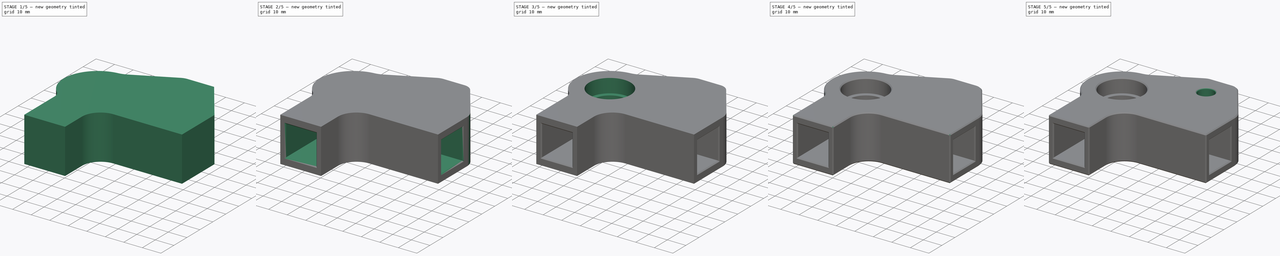
[diagram: build sequence overview — one tinted view per stage of 5, left to right]
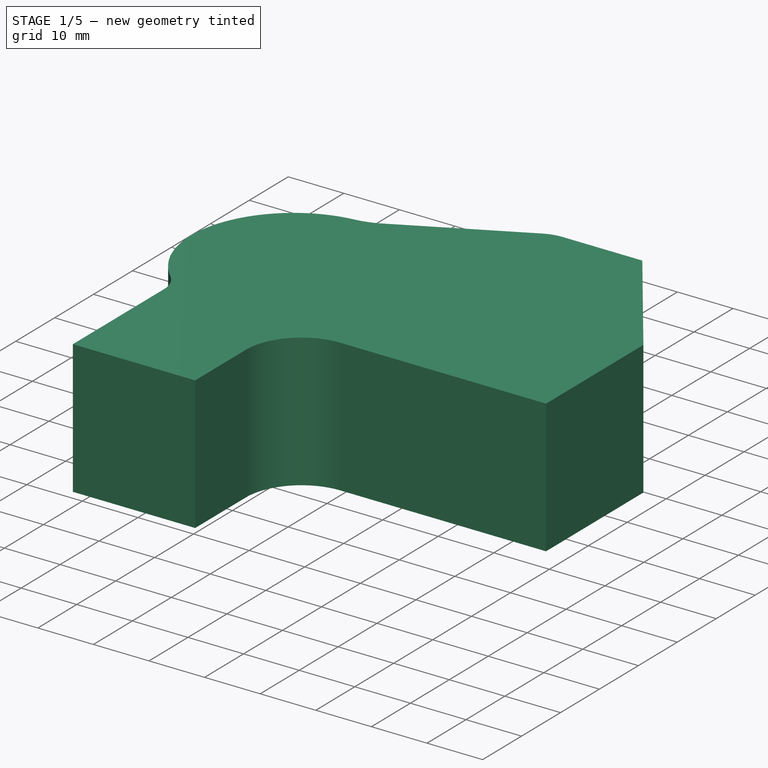
[diagram: stage 1 of 5 — iso view after this stage's code; geometry added in this stage tinted green]
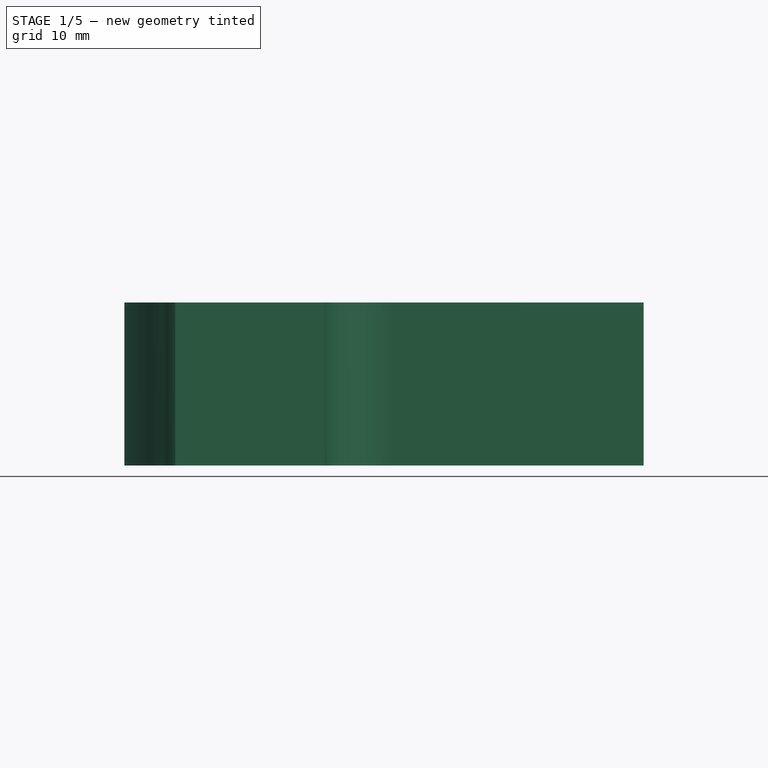
[diagram: stage 1 of 5 — front view after this stage's code; geometry added in this stage tinted green]
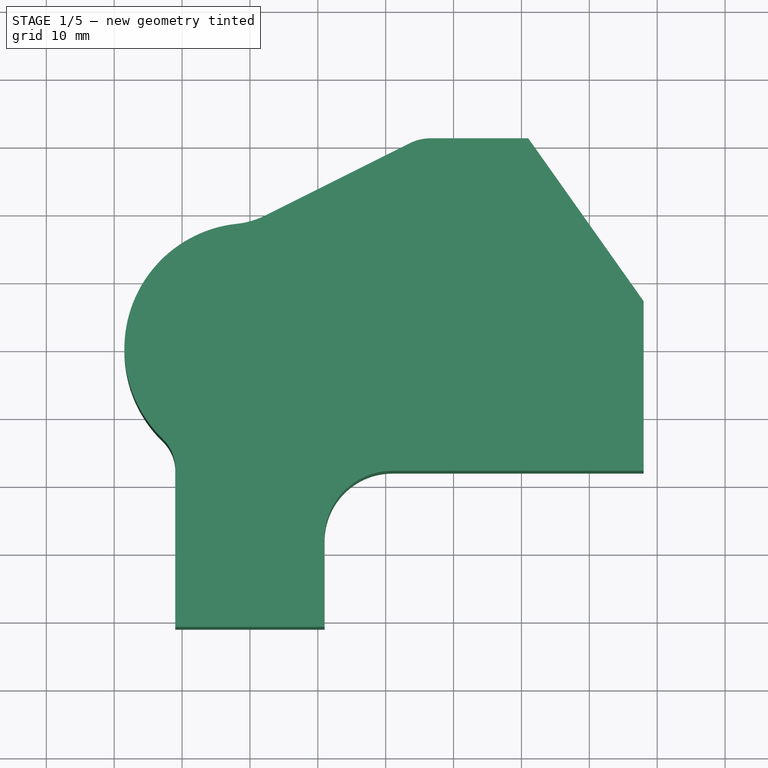
[diagram: stage 1 of 5 — top view after this stage's code; geometry added in this stage tinted green]
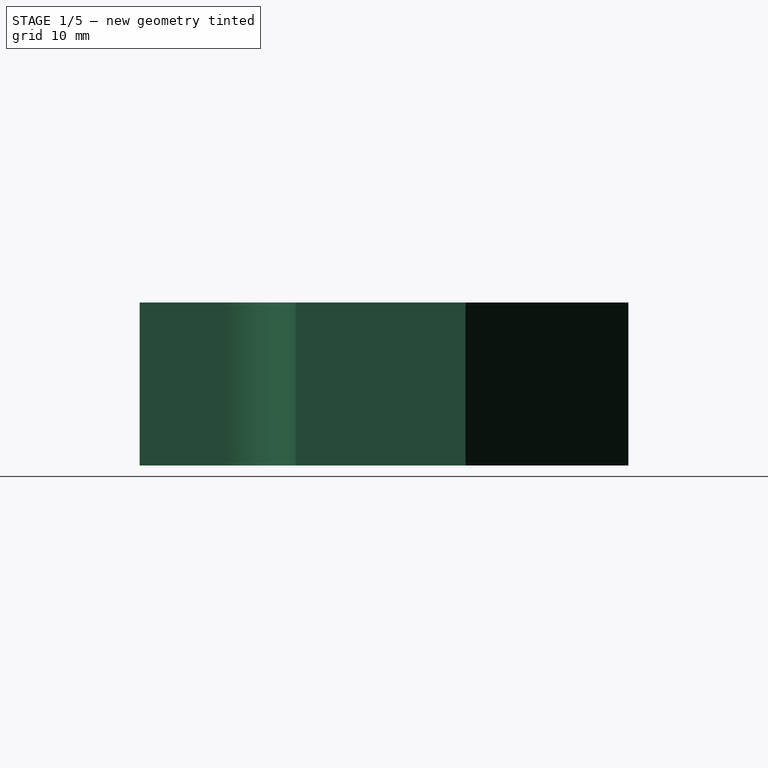
[diagram: stage 1 of 5 — right view after this stage's code; geometry added in this stage tinted green]
FCSTD DOCUMENT  (FreeCAD 2022.709R26244 +5001 (Git))
Label: MotorizedBed
License: All rights reserved
LicenseURL: http://en.wikipedia.org/wiki/All_rights_reserved
objects: Sketcher::SketchObject×10, PartDesign::Pocket×9, PartDesign::CoordinateSystem×9, PartDesign::Chamfer×8, PartDesign::Fillet×6, App::Part×5, App::Link×5, Part::Feature×3, App::DocumentObjectGroup×3, PartDesign::Pad×1, PartDesign::Plane×1, PartDesign::Body×1, App::FeaturePython×1
note: 96 computed .brp shape members not serialized (recipe doc carries the construction recipe); baked Part::Feature solids carry a one-line shape summary decoded from their .brp

FEATURE [Sketcher::SketchObject] Sketch
  ArcFitTolerance = 1e-06
  FullyConstrained = true
  MapMode = 5
  TreeRank = 141
  sketch-geometry (10):
    g0: LineSegment StartX=-11 StartY=-14.8745 StartZ=0 EndX=-11 EndY=-41 EndZ=0
    g1: LineSegment StartX=-11 StartY=-41 StartZ=0 EndX=11 EndY=-41 EndZ=0
    g2: LineSegment StartX=11 StartY=-41 StartZ=0 EndX=11 EndY=-18 EndZ=0
    g3: LineSegment StartX=11 StartY=-18 StartZ=0 EndX=58 EndY=-18 EndZ=0
    g4: LineSegment StartX=58 StartY=-18 StartZ=0 EndX=58 EndY=7 EndZ=0
    g5: LineSegment StartX=58 StartY=7 StartZ=0 EndX=41 EndY=31 EndZ=0
    g6: LineSegment StartX=41 StartY=31 StartZ=0 EndX=25 EndY=31 EndZ=0
    g7: Circle [constr] CenterX=0 CenterY=0 CenterZ=0 NormalX=0 NormalY=0 NormalZ=1 AngleXU=0 Radius=18.5
    g8: ArcOfCircle CenterX=0 CenterY=0 CenterZ=0 NormalX=0 NormalY=0 NormalZ=1 AngleXU=0 Radius=18.5 StartAngle=1.5708 EndAngle=4.07563
    g9: LineSegment StartX=0 StartY=18.5 StartZ=0 EndX=25 EndY=31 EndZ=0
  constraints (28):
    c: Vertical(g0)
    c: Coincident(g0,g1)
    c: Coincident(g1,g2)
    c: Vertical(g2)
    c: Coincident(g2,g3)
    c: Horizontal(g3)
    c: Coincident(g3,g4)
    c: Vertical(g4)
    c: Coincident(g4,g5)
    c: Coincident(g5,g6)
    c: Horizontal(g6)
    c: DistanceY(g0,g-1) = 41
    c: DistanceX(g0,g-1) = 11
    c: Symmetric(g0,g1,g-2)
    c: DistanceY(g3,g-1) = 18
    c: DistanceY(g-1,g4) = 7
    c: DistanceX(g-1,g6) = 25
    c: DistanceX(g-1,g5) = 41
    c: DistanceX(g-1,g3) = 58
    c: Coincident(g7,g-1)
    c: Diameter(g7) = 37
    c: Coincident(g8,g7)
    c: Coincident(g8,g0)
    c: PointOnObject(g8,g7)
    c: PointOnObject(g8,g-2)
    c: Coincident(g9,g8)
    c: Coincident(g9,g6)
    c: DistanceY(g8,g6) = 31
FEATURE [PartDesign::Pad] Pad  label="MainForm"
  AddSubType = 0
  AlongSketchNormal = false
  CheckUpToFaceLimits = true
  ClaimChildren = false
  Direction = (0,0,1)
  Fit = 0
  FitJoin = 0
  InnerFit = 0
  InnerFitJoin = 0
  InnerTaperAngle = 0
  InnerTaperAngleRev = 0
  Length = 24
  Length2 = 100
  Linearize = true
  Midplane = true
  NewSolid = false
  Profile = -> Sketch
  Suppress = false
  TreeRank = 29
  Type = 0
  _ProfileBasedVersion = 1
FEATURE [PartDesign::Fillet] Fillet
  AddSubType = 0
  Base = -> Pad [Edge8]
  BaseFeature = -> Pad
  NewSolid = false
  Radius = 10
  SupportTransform = false
  Suppress = false
  TreeRank = 30
FEATURE [PartDesign::Fillet] Fillet001
  AddSubType = 0
  Base = -> Fillet [Edge26]
  BaseFeature = -> Fillet
  NewSolid = false
  Radius = 6
  SupportTransform = false
  Suppress = false
  TreeRank = 31
FEATURE [PartDesign::Fillet] Fillet002
  AddSubType = 0
  Base = -> Fillet001 [Edge19]
  BaseFeature = -> Fillet001
  NewSolid = false
  Radius = 12
  SupportTransform = false
  Suppress = false
  TreeRank = 32
FEATURE [PartDesign::Fillet] Fillet003
  AddSubType = 0
  Base = -> Fillet002 [Edge20]
  BaseFeature = -> Fillet002
  NewSolid = false
  Radius = 7
  SupportTransform = false
  Suppress = false
  TreeRank = 33
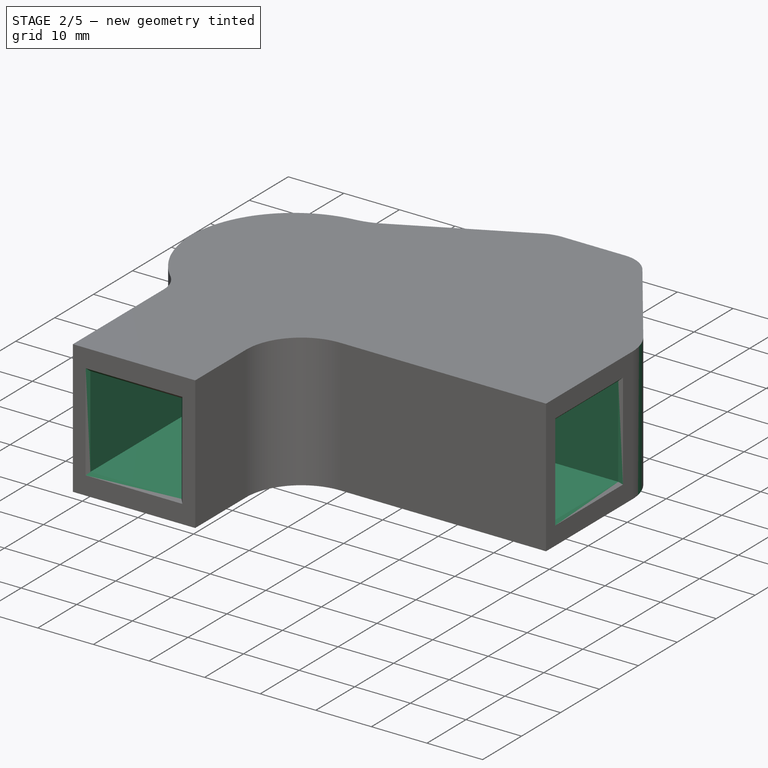
[diagram: stage 2 of 5 — iso view after this stage's code; geometry added in this stage tinted green]
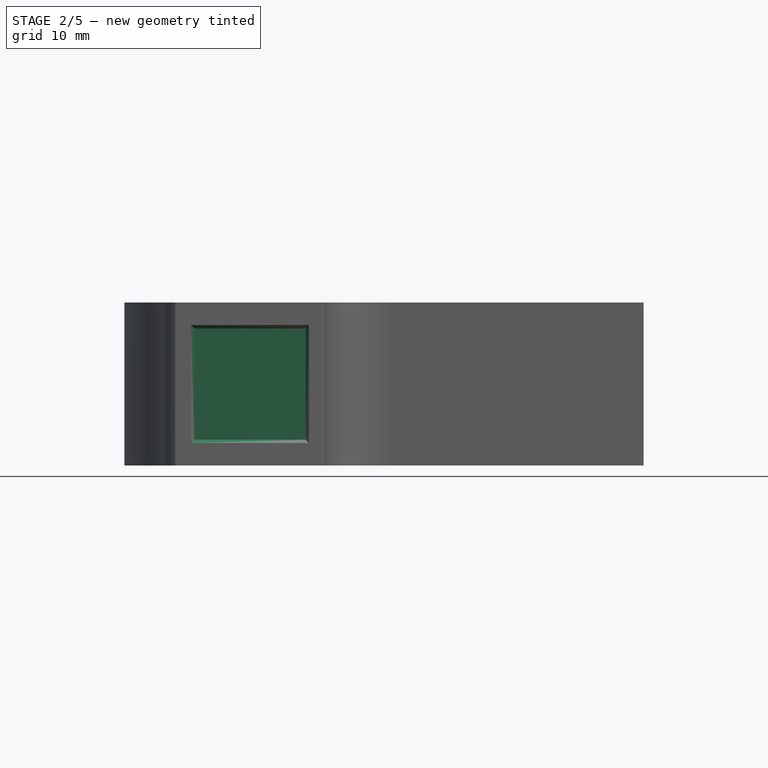
[diagram: stage 2 of 5 — front view after this stage's code; geometry added in this stage tinted green]
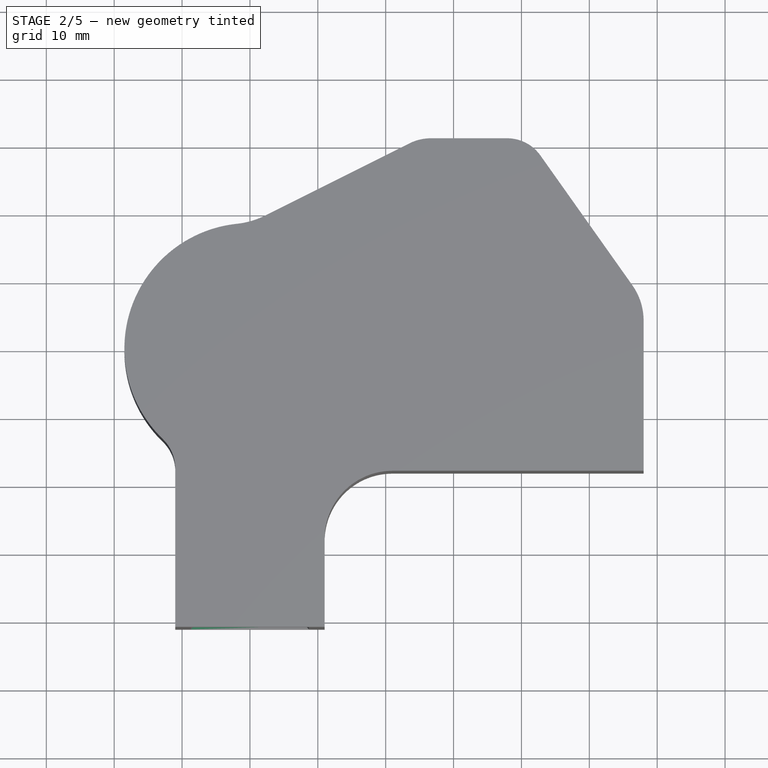
[diagram: stage 2 of 5 — top view after this stage's code; geometry added in this stage tinted green]
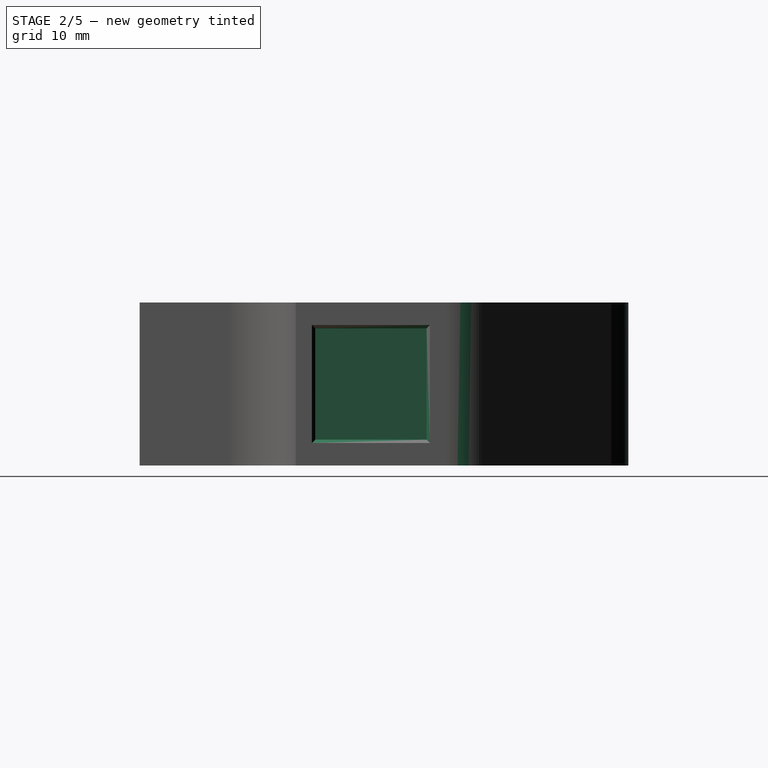
[diagram: stage 2 of 5 — right view after this stage's code; geometry added in this stage tinted green]
FEATURE [PartDesign::Fillet] Fillet004
  AddSubType = 0
  Base = -> Fillet003 [Edge21]
  BaseFeature = -> Fillet003
  NewSolid = false
  Radius = 6
  SupportTransform = false
  Suppress = false
  TreeRank = 34
FEATURE [PartDesign::Fillet] Fillet005
  AddSubType = 0
  Base = -> Fillet004 [Edge22]
  BaseFeature = -> Fillet004
  NewSolid = false
  Radius = 9
  SupportTransform = false
  Suppress = false
  TreeRank = 35
FEATURE [Sketcher::SketchObject] Sketch001
  ArcFitTolerance = 1e-06
  AttachmentSupport = -> [Fillet005]
  FullyConstrained = true
  MapMode = 5
  Placement = pos=(0,-41,0) rot=(1,0,0;1.5708rad)
  Support = -> [Fillet005]
  TreeRank = 142
  sketch-geometry (4):
    g0: LineSegment StartX=-8.2 StartY=8.2 StartZ=0 EndX=8.2 EndY=8.2 EndZ=0
    g1: LineSegment StartX=8.2 StartY=8.2 StartZ=0 EndX=8.2 EndY=-8.2 EndZ=0
    g2: LineSegment StartX=8.2 StartY=-8.2 StartZ=0 EndX=-8.2 EndY=-8.2 EndZ=0
    g3: LineSegment StartX=-8.2 StartY=-8.2 StartZ=0 EndX=-8.2 EndY=8.2 EndZ=0
  constraints (11):
    c: Coincident(g0,g1)
    c: Coincident(g1,g2)
    c: Coincident(g2,g3)
    c: Coincident(g3,g0)
    c: Horizontal(g0)
    c: Horizontal(g2)
    c: Vertical(g1)
    c: Vertical(g3)
    c: Symmetric(g0,g2,g-1)
    c: Equal(g1,g0)
    c: DistanceX(g0,g0) = 16.4
FEATURE [PartDesign::Pocket] Pocket  label="CavitéProfilé"
  AddSubType = 1
  BaseFeature = -> Fillet005
  CheckUpToFaceLimits = true
  ClaimChildren = false
  Fit = 0
  FitJoin = 0
  InnerFit = 0
  InnerFitJoin = 0
  InnerTaperAngle = 0
  InnerTaperAngleRev = 0
  Length = 27
  Length2 = 100
  Linearize = true
  NewSolid = false
  Profile = -> Sketch001
  Suppress = false
  TreeRank = 37
  Type = 0
  _ProfileBasedVersion = 1
  _Version = 1
FEATURE [Sketcher::SketchObject] Sketch002
  ArcFitTolerance = 1e-06
  AttachmentSupport = -> [Pocket]
  ExternalGeometry = -> [Pocket]
  FullyConstrained = true
  MapMode = 5
  Placement = pos=(58,0,0) rot=(0.57735,0.57735,0.57735;2.0944rad)
  Support = -> [Pocket]
  TreeRank = 143
  sketch-geometry (6):
    g0: LineSegment StartX=-15.1323 StartY=8.2 StartZ=0 EndX=1.26771 EndY=8.2 EndZ=0
    g1: LineSegment StartX=1.26771 StartY=8.2 StartZ=0 EndX=1.26771 EndY=-8.2 EndZ=0
    g2: LineSegment StartX=1.26771 StartY=-8.2 StartZ=0 EndX=-15.1323 EndY=-8.2 EndZ=0
    g3: LineSegment StartX=-15.1323 StartY=-8.2 StartZ=0 EndX=-15.1323 EndY=8.2 EndZ=0
    g4: LineSegment [constr] StartX=-18 StartY=12 StartZ=0 EndX=4.13542 EndY=-12 EndZ=0
    g5: GeomPoint [constr] X=-6.93229 Y=0 Z=0
  constraints (15):
    c: Coincident(g0,g1)
    c: Coincident(g1,g2)
    c: Coincident(g2,g3)
    c: Coincident(g3,g0)
    c: Horizontal(g0)
    c: Horizontal(g2)
    c: Vertical(g1)
    c: Vertical(g3)
    c: DistanceX(g0,g0) = 16.4
    c: Coincident(g4,g-3)
    c: Coincident(g4,g-4)
    c: PointOnObject(g5,g4)
    c: PointOnObject(g5,g-1)
    c: Symmetric(g0,g1,g5)
    c: Equal(g0,g1)
FEATURE [PartDesign::Pocket] Pocket001  label="CavitéProfilé2"
  AddSubType = 1
  BaseFeature = -> Pocket
  CheckUpToFaceLimits = true
  ClaimChildren = false
  Fit = 0
  FitJoin = 0
  InnerFit = 0
  InnerFitJoin = 0
  InnerTaperAngle = 0
  InnerTaperAngleRev = 0
  Length = 27
  Length2 = 100
  Linearize = true
  NewSolid = false
  Profile = -> Sketch002
  Suppress = false
  TreeRank = 39
  Type = 0
  _ProfileBasedVersion = 1
  _Version = 1
FEATURE [PartDesign::Chamfer] Chamfer
  AddSubType = 0
  Angle = 45
  Base = -> Pocket001 [Edge45,Edge48,Edge47,Edge46,Edge28,Edge25,Edge26,Edge27]
  BaseFeature = -> Pocket001
  ChamferType = 0
  FlipDirection = false
  NewSolid = false
  Size = 0.5
  Size2 = 1
  SupportTransform = false
  Suppress = false
  TreeRank = 40
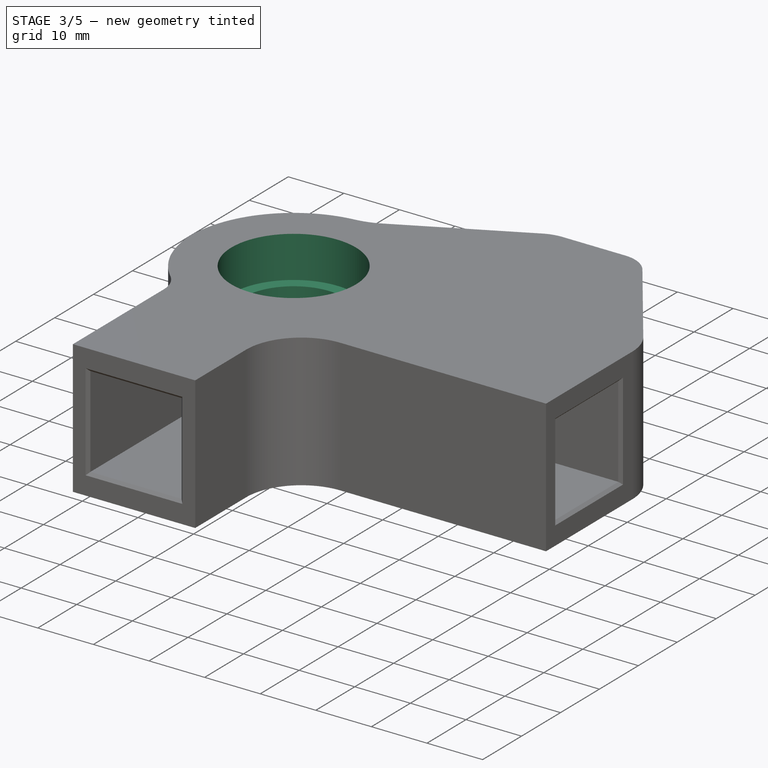
[diagram: stage 3 of 5 — iso view after this stage's code; geometry added in this stage tinted green]
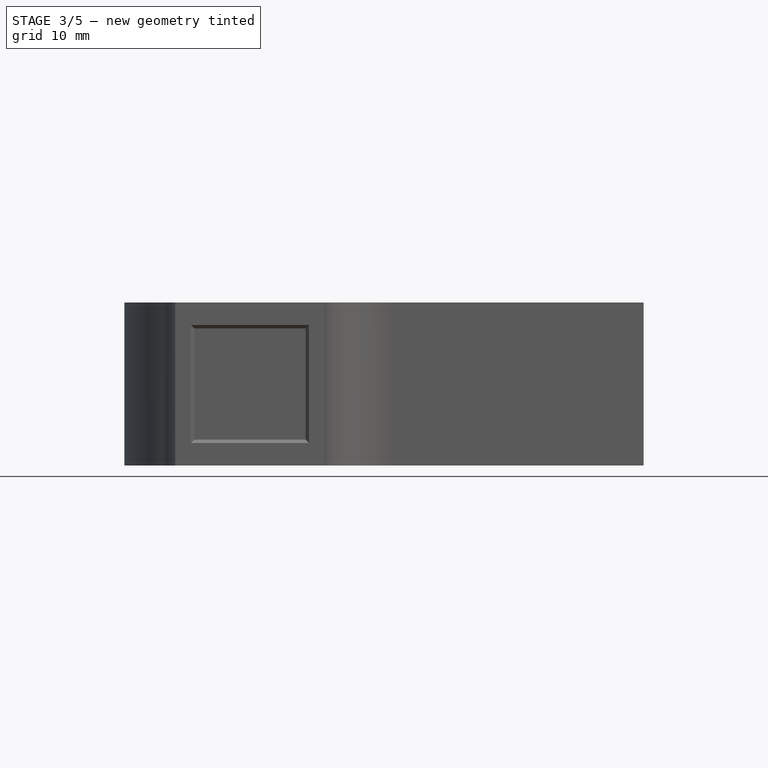
[diagram: stage 3 of 5 — front view after this stage's code; geometry added in this stage tinted green]
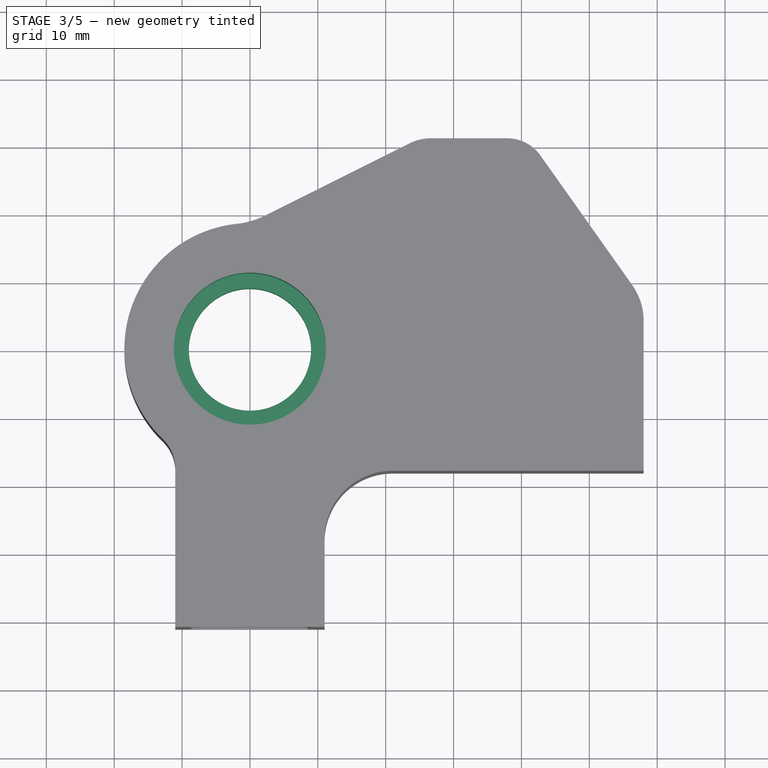
[diagram: stage 3 of 5 — top view after this stage's code; geometry added in this stage tinted green]
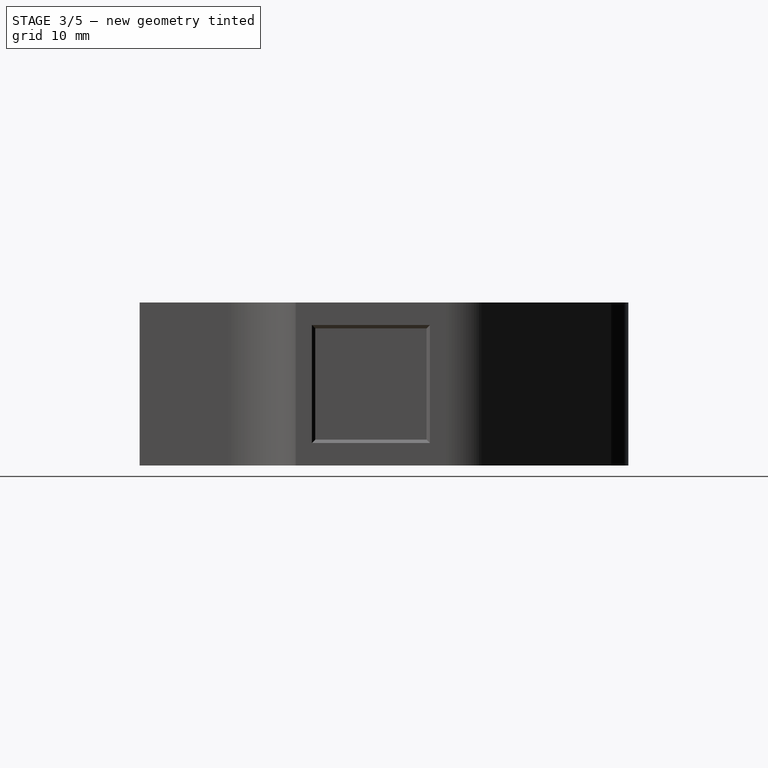
[diagram: stage 3 of 5 — right view after this stage's code; geometry added in this stage tinted green]
FEATURE [Sketcher::SketchObject] Sketch003
  ArcFitTolerance = 1e-06
  AttachmentSupport = -> [Chamfer]
  FullyConstrained = true
  MapMode = 5
  Placement = pos=(0,0,12) rot=(0,0,1;0rad)
  Support = -> [Chamfer]
  TreeRank = 144
  sketch-geometry (1):
    g0: Circle CenterX=0 CenterY=0 CenterZ=0 NormalX=0 NormalY=0 NormalZ=1 AngleXU=0 Radius=11.2
  constraints (2):
    c: Coincident(g0,g-1)
    c: Diameter(g0) = 22.4
FEATURE [PartDesign::Pocket] Pocket002  label="EmplacementRoulementSup"
  AddSubType = 1
  BaseFeature = -> Chamfer
  CheckUpToFaceLimits = true
  ClaimChildren = false
  Fit = 0
  FitJoin = 0
  InnerFit = 0
  InnerFitJoin = 0
  InnerTaperAngle = 0
  InnerTaperAngleRev = 0
  Length = 7.5
  Length2 = 100
  Linearize = true
  NewSolid = false
  Profile = -> Sketch003
  Suppress = false
  TreeRank = 42
  Type = 0
  _ProfileBasedVersion = 1
  _Version = 1
FEATURE [Sketcher::SketchObject] Sketch004
  ArcFitTolerance = 1e-06
  AttachmentSupport = -> [Pocket002]
  FullyConstrained = true
  MapMode = 5
  Placement = pos=(0,0,4.5) rot=(0,0,1;0rad)
  Support = -> [Pocket002]
  TreeRank = 145
  sketch-geometry (1):
    g0: Circle CenterX=0 CenterY=0 CenterZ=0 NormalX=0 NormalY=0 NormalZ=1 AngleXU=0 Radius=9
  constraints (2):
    c: Coincident(g0,g-1)
    c: Diameter(g0) = 18
FEATURE [PartDesign::Pocket] Pocket003  label="EmplacementBride"
  AddSubType = 1
  BaseFeature = -> Pocket002
  CheckUpToFaceLimits = true
  ClaimChildren = false
  Fit = 0
  FitJoin = 0
  InnerFit = 0
  InnerFitJoin = 0
  InnerTaperAngle = 0
  InnerTaperAngleRev = 0
  Length = 6.5
  Length2 = 100
  Linearize = true
  NewSolid = false
  Profile = -> Sketch004
  Suppress = false
  TreeRank = 44
  Type = 0
  _ProfileBasedVersion = 1
  _Version = 1
FEATURE [Sketcher::SketchObject] Sketch005
  ArcFitTolerance = 1e-06
  AttachmentSupport = -> [Pocket003]
  FullyConstrained = true
  MapMode = 5
  Placement = pos=(0,0,-2) rot=(0,0,1;0rad)
  Support = -> [Pocket003]
  TreeRank = 146
  sketch-geometry (1):
    g0: Circle CenterX=0 CenterY=0 CenterZ=0 NormalX=0 NormalY=0 NormalZ=1 AngleXU=0 Radius=11.05
  constraints (2):
    c: Coincident(g0,g-1)
    c: Diameter(g0) = 22.1
FEATURE [PartDesign::Pocket] Pocket004  label="EmplacementRoulementInf"
  AddSubType = 1
  BaseFeature = -> Pocket003
  CheckUpToFaceLimits = true
  ClaimChildren = false
  Fit = 0
  FitJoin = 0
  InnerFit = 0
  InnerFitJoin = 0
  InnerTaperAngle = 0
  InnerTaperAngleRev = 0
  Length = 7.5
  Length2 = 100
  Linearize = true
  NewSolid = false
  Profile = -> Sketch005
  Suppress = false
  TreeRank = 46
  Type = 0
  _ProfileBasedVersion = 1
  _Version = 1
FEATURE [Sketcher::SketchObject] Sketch006
  ArcFitTolerance = 1e-06
  AttachmentSupport = -> [Pocket004]
  FullyConstrained = true
  MapMode = 5
  Placement = pos=(0,0,-9.5) rot=(0,0,1;0rad)
  Support = -> [Pocket004]
  TreeRank = 147
  sketch-geometry (1):
    g0: Circle CenterX=0 CenterY=0 CenterZ=0 NormalX=0 NormalY=0 NormalZ=1 AngleXU=0 Radius=11.5
  constraints (2):
    c: Coincident(g0,g-1)
    c: Diameter(g0) = 23
FEATURE [PartDesign::Pocket] Pocket005
  AddSubType = 1
  BaseFeature = -> Pocket004
  CheckUpToFaceLimits = true
  ClaimChildren = false
  Fit = 0
  FitJoin = 0
  InnerFit = 0
  InnerFitJoin = 0
  InnerTaperAngle = 0
  InnerTaperAngleRev = 0
  Length = 5
  Length2 = 100
  Linearize = true
  NewSolid = false
  Profile = -> Sketch006
  Suppress = false
  TreeRank = 48
  Type = 1
  _ProfileBasedVersion = 1
  _Version = 1
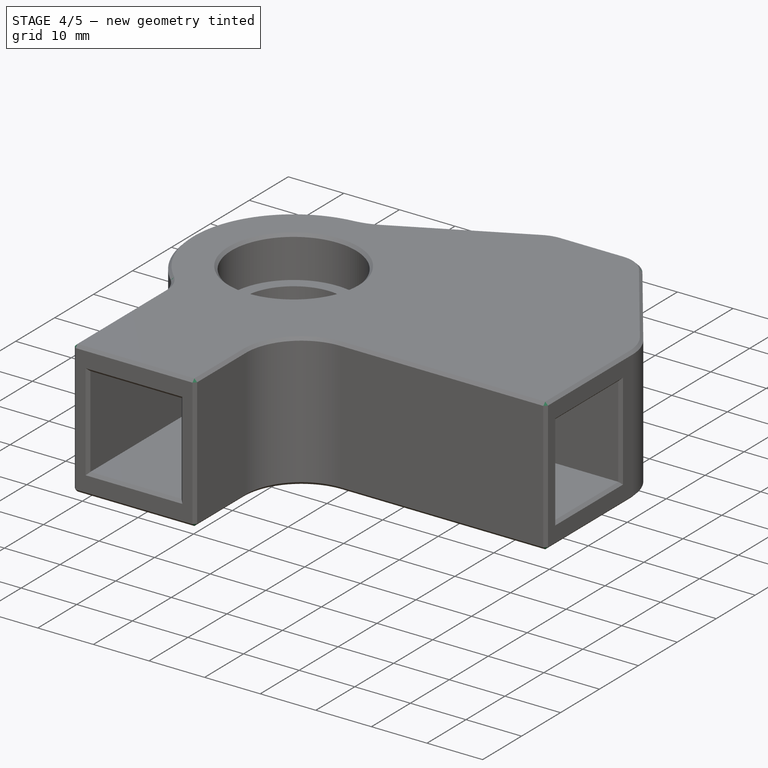
[diagram: stage 4 of 5 — iso view after this stage's code; geometry added in this stage tinted green]
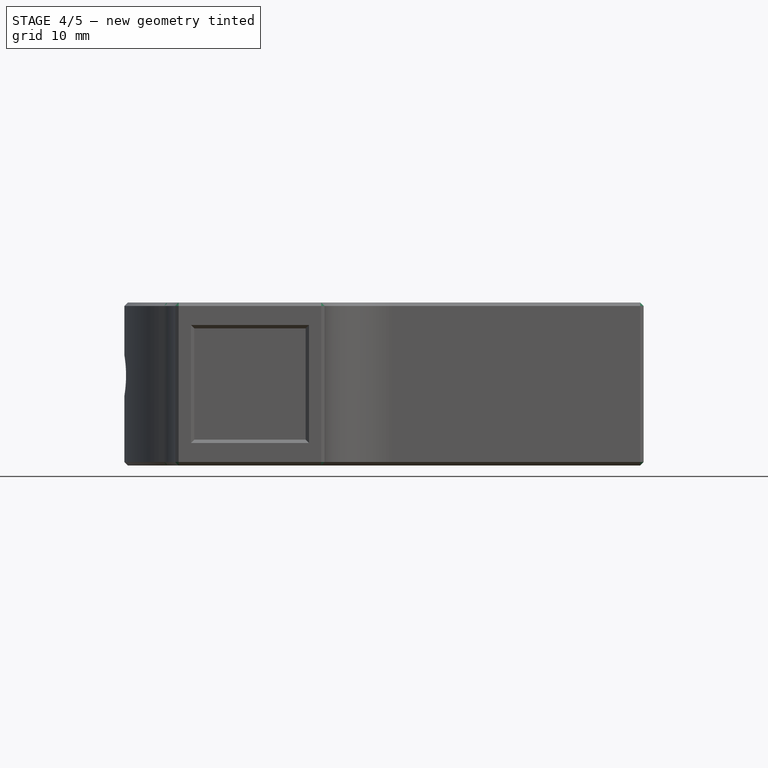
[diagram: stage 4 of 5 — front view after this stage's code; geometry added in this stage tinted green]
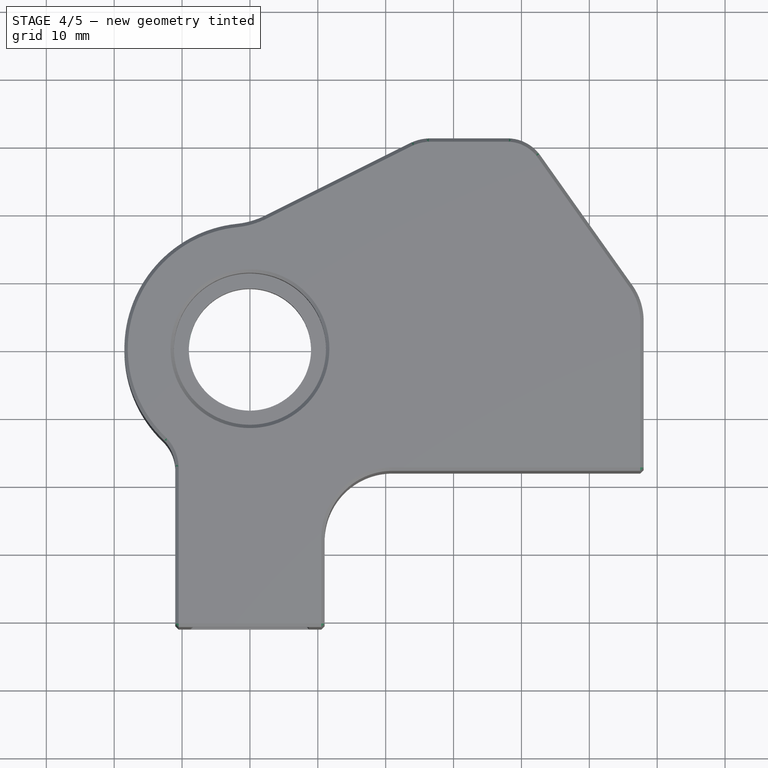
[diagram: stage 4 of 5 — top view after this stage's code; geometry added in this stage tinted green]
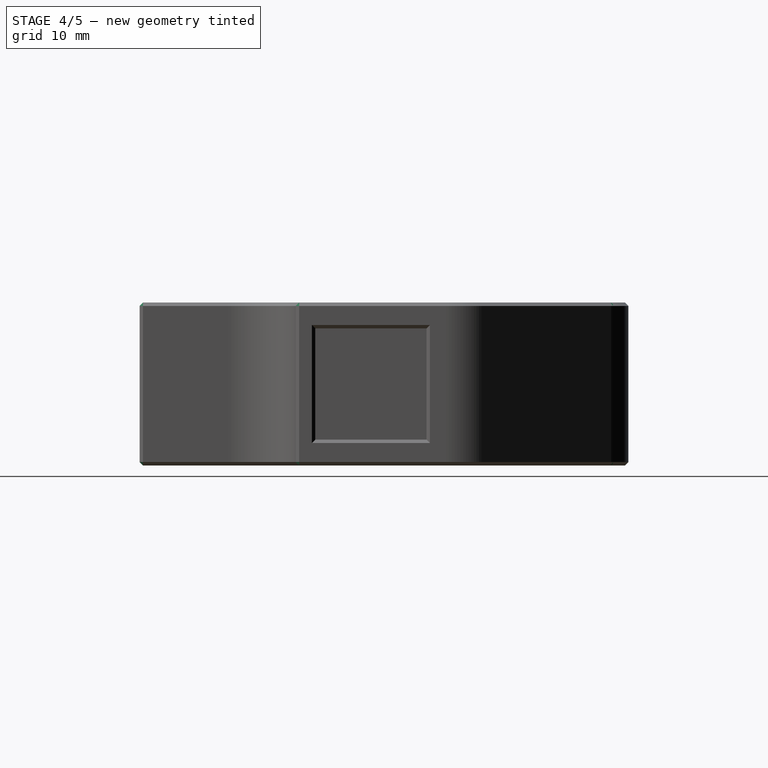
[diagram: stage 4 of 5 — right view after this stage's code; geometry added in this stage tinted green]
FEATURE [PartDesign::Chamfer] Chamfer001
  AddSubType = 0
  Angle = 45
  Base = -> Pocket005 [Edge84]
  BaseFeature = -> Pocket005
  ChamferType = 0
  FlipDirection = false
  NewSolid = false
  Size = 0.3
  Size2 = 1
  SupportTransform = false
  Suppress = false
  TreeRank = 49
FEATURE [PartDesign::Chamfer] Chamfer002
  AddSubType = 0
  Angle = 45
  Base = -> Chamfer001 [Edge65]
  BaseFeature = -> Chamfer001
  ChamferType = 0
  FlipDirection = false
  NewSolid = false
  Size = 0.5
  Size2 = 1
  SupportTransform = false
  Suppress = false
  TreeRank = 50
FEATURE [PartDesign::Plane] DatumPlane  label="PlanAccesVis"
  AttachmentOffset = pos=(0,0,-19) rot=(0,0,1;0rad)
  AttachmentSupport = -> [YZ_Plane]
  Length = 10
  MapMode = 5
  MinimumLength = 10
  MinimumWidth = 10
  Placement = pos=(-19,4.2e-15,-4.2e-15) rot=(0.57735,0.57735,0.57735;2.0944rad)
  ResizeMode = 0
  Support = -> [YZ_Plane]
  TreeRank = 51
  Width = 10
FEATURE [Sketcher::SketchObject] Sketch007
  ArcFitTolerance = 1e-06
  AttachmentSupport = -> [DatumPlane]
  ExternalGeometry = -> [Chamfer002]
  FullyConstrained = true
  MapMode = 5
  Placement = pos=(-19,4.2e-15,-4.2e-15) rot=(0.57735,0.57735,0.57735;2.0944rad)
  Support = -> [DatumPlane]
  TreeRank = 148
  sketch-geometry (2):
    g0: Circle CenterX=0 CenterY=1.25 CenterZ=0 NormalX=0 NormalY=0 NormalZ=1 AngleXU=0 Radius=3
    g1: LineSegment [constr] StartX=9 StartY=4.5 StartZ=0 EndX=-9 EndY=-2 EndZ=0
  constraints (5):
    c: PointOnObject(g0,g-2)
    c: Coincident(g1,g-3)
    c: Coincident(g1,g-4)
    c: PointOnObject(g0,g1)
    c: Diameter(g0) = 6
FEATURE [PartDesign::Pocket] Pocket006  label="AccèsVis"
  AddSubType = 1
  BaseFeature = -> Chamfer002
  CheckUpToFaceLimits = true
  ClaimChildren = false
  Fit = 0
  FitJoin = 0
  InnerFit = 0
  InnerFitJoin = 0
  InnerTaperAngle = 0
  InnerTaperAngleRev = 0
  Length = 0
  Length2 = 100
  Linearize = true
  NewSolid = false
  Profile = -> Sketch007
  Suppress = false
  TreeRank = 53
  Type = 3
  UpToFace = -> Chamfer002 [Face38]
  _ProfileBasedVersion = 1
  _Version = 1
FEATURE [Sketcher::SketchObject] Sketch008
  ArcFitTolerance = 1e-06
  AttachmentSupport = -> [Pocket006]
  FullyConstrained = true
  MapMode = 5
  Placement = pos=(0,0,12) rot=(0,0,1;0rad)
  Support = -> [Pocket006]
  TreeRank = 149
  sketch-geometry (1):
    g0: Circle CenterX=32.5 CenterY=18.5 CenterZ=0 NormalX=0 NormalY=0 NormalZ=1 AngleXU=0 Radius=4.2
  constraints (3):
    c: DistanceY(g-1,g0) = 18.5
    c: DistanceX(g-1,g0) = 32.5
    c: Diameter(g0) = 8.4
FEATURE [PartDesign::Chamfer] Chamfer005
  AddSubType = 0
  Angle = 45
  Base = -> Pocket006 [Edge61]
  BaseFeature = -> Pocket006
  ChamferType = 0
  FlipDirection = false
  NewSolid = false
  Size = 0.5
  Size2 = 1
  SupportTransform = false
  Suppress = true
  TreeRank = 65
FEATURE [PartDesign::Chamfer] Chamfer006
  AddSubType = 0
  Angle = 45
  Base = -> Chamfer005 [Edge10,Edge7,Edge13,Edge40,Edge34,Edge51,Edge50,Edge43,Edge31]
  BaseFeature = -> Chamfer005
  ChamferType = 0
  FlipDirection = false
  NewSolid = false
  Size = 0.5
  Size2 = 1
  SupportTransform = false
  Suppress = false
  TreeRank = 63
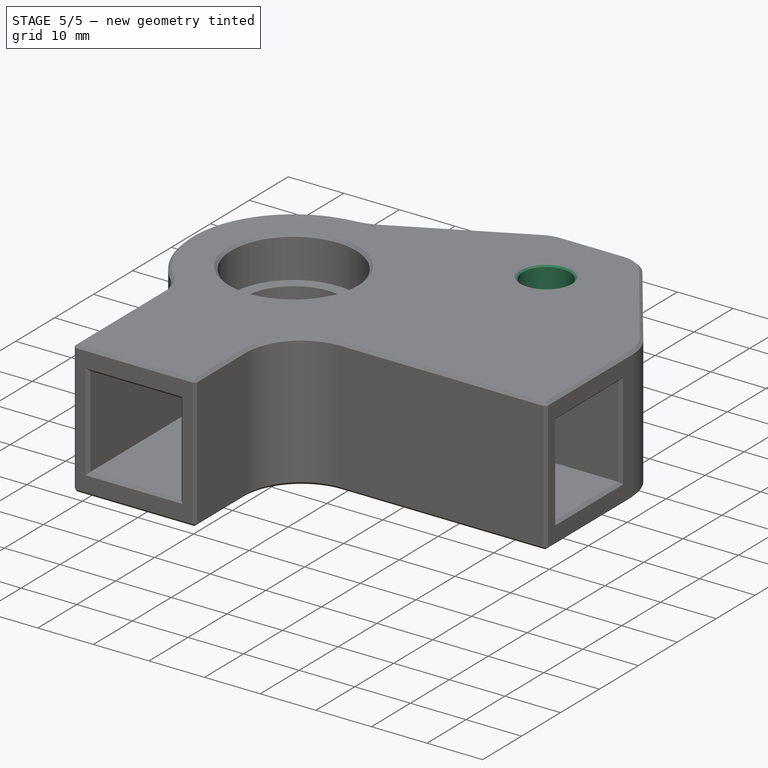
[diagram: stage 5 of 5 — iso view after this stage's code; geometry added in this stage tinted green]
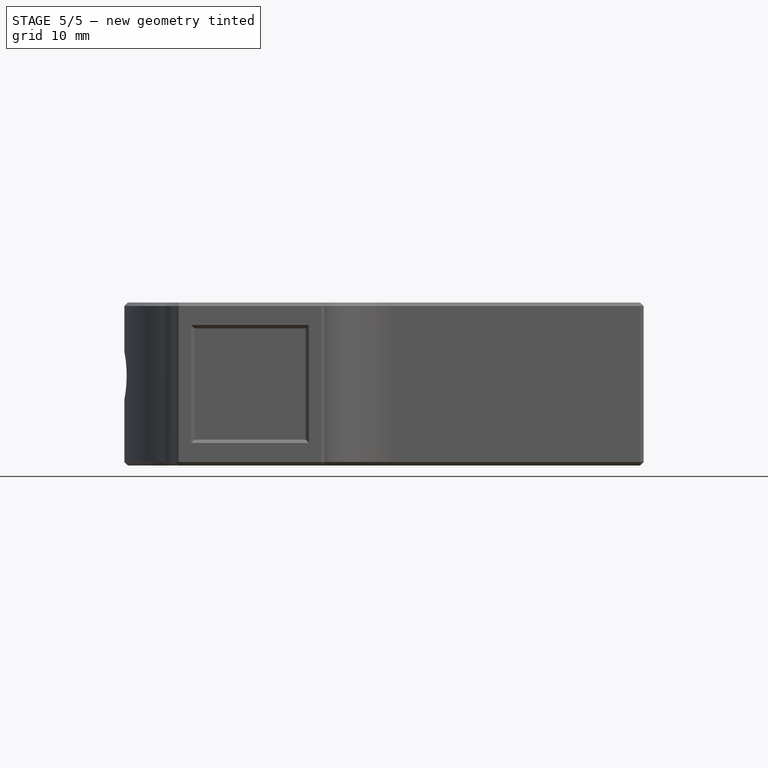
[diagram: stage 5 of 5 — front view after this stage's code; geometry added in this stage tinted green]
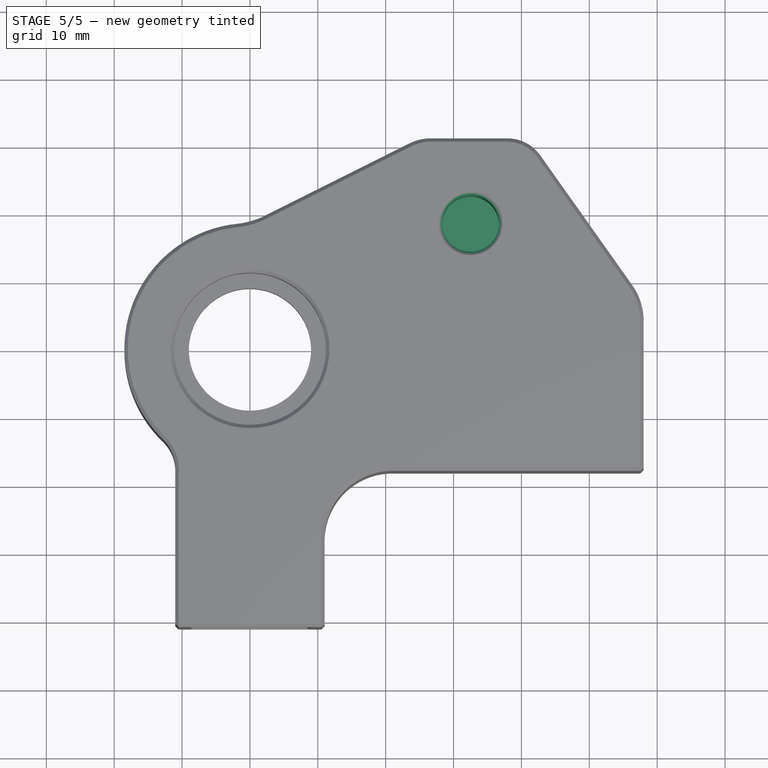
[diagram: stage 5 of 5 — top view after this stage's code; geometry added in this stage tinted green]
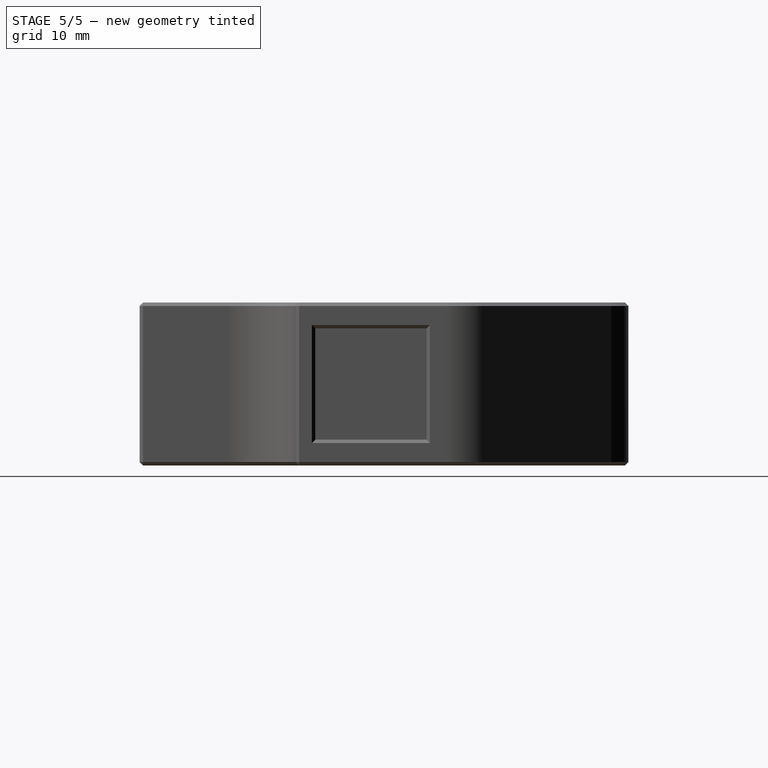
[diagram: stage 5 of 5 — right view after this stage's code; geometry added in this stage tinted green]
FEATURE [PartDesign::Pocket] Pocket007  label="CavitéBarreLisse"
  AddSubType = 1
  BaseFeature = -> Chamfer006
  CheckUpToFaceLimits = true
  ClaimChildren = false
  Fit = 0
  FitJoin = 0
  InnerFit = 0
  InnerFitJoin = 0
  InnerTaperAngle = 0
  InnerTaperAngleRev = 0
  Length = 19
  Length2 = 100
  Linearize = true
  NewSolid = false
  Profile = -> Sketch008
  Suppress = false
  TreeRank = 55
  Type = 0
  _ProfileBasedVersion = 1
  _Version = 1
FEATURE [PartDesign::Chamfer] Chamfer003
  AddSubType = 0
  Angle = 45
  Base = -> Pocket007 [Edge17]
  BaseFeature = -> Pocket007
  ChamferType = 0
  FlipDirection = false
  NewSolid = false
  Size = 0.5
  Size2 = 1
  SupportTransform = false
  Suppress = false
  TreeRank = 56
FEATURE [Sketcher::SketchObject] Sketch009
  ArcFitTolerance = 1e-06
  AttachmentSupport = -> [Chamfer003]
  ExternalGeometry = -> [Chamfer003]
  FullyConstrained = true
  MapMode = 5
  Placement = pos=(0,31,0) rot=(0,0.707107,0.707107;3.14159rad)
  Support = -> [Chamfer003]
  TreeRank = 150
  sketch-geometry (3):
    g0: LineSegment [constr] StartX=-36.7 StartY=11.5 StartZ=0 EndX=-28.3 EndY=-7 EndZ=0
    g1: LineSegment [constr] StartX=-28.3 StartY=11.5 StartZ=0 EndX=-36.7 EndY=-7 EndZ=0
    g2: Circle CenterX=-32.5 CenterY=2.25 CenterZ=0 NormalX=0 NormalY=0 NormalZ=1 AngleXU=0 Radius=1.8
  constraints (7):
    c: Coincident(g0,g-4)
    c: Coincident(g0,g-3)
    c: Coincident(g1,g-4)
    c: Coincident(g1,g-3)
    c: PointOnObject(g2,g1)
    c: PointOnObject(g2,g0)
    c: Diameter(g2) = 3.6
FEATURE [PartDesign::Pocket] Pocket008  label="TrouVisFixationBarreLisse"
  AddSubType = 1
  BaseFeature = -> Chamfer003
  CheckUpToFaceLimits = true
  ClaimChildren = false
  Fit = 0
  FitJoin = 0
  InnerFit = 0
  InnerFitJoin = 0
  InnerTaperAngle = 0
  InnerTaperAngleRev = 0
  Length = 0
  Length2 = 100
  Linearize = true
  NewSolid = false
  Profile = -> Sketch009
  Suppress = false
  TreeRank = 58
  Type = 3
  UpToFace = -> Chamfer003 [Face19]
  _ProfileBasedVersion = 1
  _Version = 1
FEATURE [PartDesign::Chamfer] Chamfer004
  AddSubType = 0
  Angle = 45
  Base = -> Pocket008 [Edge100]
  BaseFeature = -> Pocket008
  ChamferType = 0
  FlipDirection = false
  NewSolid = false
  Size = 0.3
  Size2 = 1
  SupportTransform = false
  Suppress = false
  TreeRank = 64
FEATURE [PartDesign::Chamfer] Chamfer007
  AddSubType = 0
  Angle = 45
  Base = -> Chamfer004 [Edge139]
  BaseFeature = -> Chamfer004
  ChamferType = 0
  FlipDirection = false
  NewSolid = false
  Size = 0.5
  Size2 = 1
  SupportTransform = false
  Suppress = false
  TreeRank = 66
FEATURE [PartDesign::Body] Body  label="BasePlastique"
  AutoGroupSolids = false
  ClaimAllChildren = false
  ExportMode = 0
  Group = -> [Sketch,Pad,Fillet,Fillet001,Fillet002,Fillet003,Fillet004,Fillet005,Sketch001,Pocket,Sketch002,Pocket001,Chamfer,Sketch003,Pocket002,Sketch004,Pocket003,Sketch005,Pocket004,Sketch006,Pocket005,Chamfer001,Chamfer002,DatumPlane,Sketch007,Pocket006,Sketch008,Chamfer005,Chamfer006,Pocket007,Chamfer003,Sketch009,Pocket008,Chamfer004,Chamfer007]
  Origin = -> Origin001
  Tip = -> Chamfer007
  TreeRank = 14
  _ExportChildren = -> [Pad,Fillet,Fillet001,Fillet002,Fillet003,Fillet004,Fillet005,Pocket,Pocket001,Chamfer,Pocket002,Pocket003,Pocket004,Pocket005,Chamfer001,Chamfer002,DatumPlane,Pocket006,Chamfer005,Chamfer006,Pocket007,Chamfer003,Pocket008,Chamfer004,Chamfer007]
  _GroupVersion = 1
FEATURE [Part::Feature] Compound  label="Roulement"
  Placement = pos=(-160.5,117.5,83.35) rot=(0,0,1;0rad)
  TreeRank = 80
  shape: bbox 23.81 x 23.81 x 7 mm, 814 faces, 20 solids (baked)
FEATURE [PartDesign::CoordinateSystem] Local_CS  label="PlanRoulement"
  AttacherType = Attacher::AttachEngine3D
  AttachmentOffset = pos=(0,0,0) rot=(0,1,0;3.14159rad)
  AttachmentSupport = -> [Compound]
  MapMode = 5
  Placement = pos=(-160.5,117.5,79.85) rot=(0,0,1;3.14159rad)
  Support = -> [Compound]
  TreeRank = 113
FEATURE [App::Part] Part002  label="Roulement608ZZ"
  ClaimAllChildren = false
  ExportMode = 1
  Group = -> [Compound,Local_CS]
  Origin = -> Origin003
  TreeRank = 118
  _ExportChildren = -> [Compound,Local_CS]
  _GroupVersion = 1
FEATURE [PartDesign::CoordinateSystem] Local_CS001  label="LCSRoulementSup"
  AttacherType = Attacher::AttachEngine3D
  AttachmentSupport = -> [Chamfer007]
  MapMode = 5
  Placement = pos=(0,0,4.5) rot=(0,0,1;0rad)
  Support = -> [Chamfer007]
  TreeRank = 115
FEATURE [PartDesign::CoordinateSystem] LCS_Origin
  AttacherType = Attacher::AttachEngine3D
  AttachmentSupport = -> [X_Axis004]
  MapMode = 2
  Support = -> [X_Axis004]
  TreeRank = 122
FEATURE [App::DocumentObjectGroup] Constraints
  ClaimAllChildren = true
  ExportMode = 1
  TreeRank = 129
  _GroupVersion = 1
FEATURE [App::FeaturePython] Variables  # WARN: FeaturePython — macro-defined, semantics opaque (R4)
  TreeRank = 130
  Type = App::PropertyContainer
FEATURE [App::DocumentObjectGroup] Configurations
  ClaimAllChildren = true
  ExportMode = 1
  TreeRank = 131
  _GroupVersion = 1
FEATURE [App::Link] LowerBracketTL  label="LowerBracketTL001"
  AssemblyType = Part::Link
  AttachedBy = #Local_CS003
  AttachedTo = Parent Assembly#LCS_Origin
  AutoLinkLabel = true
  AutoPlacement = true
  LinkedObject = -> Part001
  ShowElement = false
  SolverId = Asm4EE
  SyncGroupVisibility = false
  TreeRank = 151
  _LinkVersion = 1
  expr: Placement = LCS_Origin.Placement * AttachmentOffset * Local_CS003.Placement ^ (-1)
FEATURE [PartDesign::CoordinateSystem] Local_CS003  label="LCSObjet"
  AttacherType = Attacher::AttachEngine3D
  MapMode = 2
  TreeRank = 153
FEATURE [App::Link] Roulement608ZZ  label="Roulement608ZZ_Sup"
  AssemblyType = Part::Link
  AttachedBy = #Local_CS
  AttachedTo = LowerBracketTL#Local_CS001
  AutoLinkLabel = true
  AutoPlacement = true
  LinkPlacement = pos=(-160.5,117.5,-75.35) rot=(0,0,-1;3.14159rad)
  LinkedObject = -> Part002
  Placement = pos=(-160.5,117.5,-75.35) rot=(0,0,-1;3.14159rad)
  ShowElement = false
  SolverId = Asm4EE
  SyncGroupVisibility = false
  TreeRank = 154
  _LinkVersion = 1
  expr: Placement = LowerBracketTL.Placement * Local_CS001.Placement * AttachmentOffset * Local_CS.Placement ^ (-1)
FEATURE [PartDesign::CoordinateSystem] Local_CS004  label="LCSRoulementInf"
  AttacherType = Attacher::AttachEngine3D
  AttachmentSupport = -> [Chamfer007]
  MapMode = 5
  Placement = pos=(0,0,-2) rot=(1,0,0;3.14159rad)
  Support = -> [Chamfer007]
  TreeRank = 155
FEATURE [App::Link] Roulement608ZZ001  label="Roulement608ZZ_Inf"
  AssemblyType = Part::Link
  AttachedBy = #Local_CS
  AttachedTo = LowerBracketTL#Local_CS004
  AutoLinkLabel = true
  AutoPlacement = true
  LinkPlacement = pos=(-160.5,-117.5,77.85) rot=(0,1,0;3.14159rad)
  LinkedObject = -> Part002
  Placement = pos=(-160.5,-117.5,77.85) rot=(0,1,0;3.14159rad)
  ShowElement = false
  SolverId = Asm4EE
  SyncGroupVisibility = false
  TreeRank = 156
  _LinkVersion = 1
  expr: Placement = LowerBracketTL.Placement * Local_CS004.Placement * AttachmentOffset * Local_CS.Placement ^ (-1)
FEATURE [Part::Feature] Compound001  label="Verrou_1"
  TreeRank = 160
  shape: bbox 14.21 x 14 x 7 mm, 18 faces, 2 solids (baked)
FEATURE [PartDesign::CoordinateSystem] Local_CS005  label="LCSCentre"
  AttacherType = Attacher::AttachEngine3D
  AttachmentSupport = -> [Compound001]
  MapMode = 45
  Placement = pos=(4e-16,-5.42e-14,-3) rot=(0,0,1;0rad)
  Support = -> [Compound001]
  TreeRank = 161
FEATURE [App::Part] Part  label="VerrouillageVisTrapézoidale"
  ClaimAllChildren = false
  ExportMode = 1
  Group = -> [Compound001,Local_CS005]
  Origin = -> Origin
  TreeRank = 159
  _ExportChildren = -> [Compound001,Local_CS005]
  _GroupVersion = 1
FEATURE [PartDesign::CoordinateSystem] Local_CS006  label="LCSVerrouillage"
  AttacherType = Attacher::AttachEngine3D
  AttachmentSupport = -> [Chamfer007]
  MapMode = 45
  Placement = pos=(7.6e-15,1e-16,1.3768) rot=(0,0,1;0rad)
  Support = -> [Chamfer007]
  TreeRank = 174
FEATURE [App::Link] VerrouillageVisTrapézoidale  label="VerrouillageVisTrapézoidale001"
  AssemblyType = Part::Link
  AttachedBy = #Local_CS005
  AttachedTo = LowerBracketTL#Local_CS006
  AutoLinkLabel = true
  AutoPlacement = true
  LinkPlacement = pos=(9.5e-15,5.43e-14,4.3768) rot=(0,0,1;0rad)
  LinkedObject = -> Part
  Placement = pos=(9.5e-15,5.43e-14,4.3768) rot=(0,0,1;0rad)
  ShowElement = false
  SolverId = Asm4EE
  SyncGroupVisibility = false
  TreeRank = 175
  _LinkVersion = 1
  expr: Placement = LowerBracketTL.Placement * Local_CS006.Placement * AttachmentOffset * Local_CS005.Placement ^ (-1)
FEATURE [PartDesign::CoordinateSystem] Local_CS007
  AttacherType = Attacher::AttachEngine3D
  AttachmentOffset = pos=(0,0,0) rot=(0,1,0;3.14159rad)
  AttachmentSupport = -> [Chamfer007]
  MapMode = 11
  Placement = pos=(32.5,31,2.25) rot=(0.57735,0.57735,-0.57735;2.0944rad)
  Support = -> [Chamfer007]
  TreeRank = 176
FEATURE [App::Part] Part001  label="LowerBracketTL"
  ClaimAllChildren = false
  ExportMode = 1
  Group = -> [Local_CS001,Body,Local_CS003,Local_CS004,Local_CS006,Local_CS007]
  Origin = -> Origin002
  TreeRank = 117
  _ExportChildren = -> [Local_CS001,Body,Local_CS003,Local_CS004,Local_CS006,Local_CS007]
  _GroupVersion = 1
FEATURE [Part::Feature] Solid  label="Threaded insert M3 Short"
  TreeRank = 180
  shape: bbox 4.611 x 3.011 x 4.611 mm, 145 faces (baked)
FEATURE [PartDesign::CoordinateSystem] Local_CS008  label="LCSPlanExt"
  AttacherType = Attacher::AttachEngine3D
  AttachmentSupport = -> [Solid]
  MapMode = 11
  Placement = pos=(-4e-16,3,0) rot=(0.57735,0.57735,-0.57735;2.0944rad)
  Support = -> [Solid]
  TreeRank = 181
FEATURE [App::Part] Part003  label="InsertM3"
  ClaimAllChildren = false
  ExportMode = 1
  Group = -> [Solid,Local_CS008]
  Origin = -> Origin005
  TreeRank = 179
  _ExportChildren = -> [Solid,Local_CS008]
  _GroupVersion = 1
FEATURE [App::DocumentObjectGroup] Parts
  ClaimAllChildren = true
  ExportMode = 1
  Group = -> [Part001,Part002,Part,Part003]
  TreeRank = 132
  _GroupVersion = 1
FEATURE [App::Link] InsertM3  label="InsertM004"
  AssemblyType = Part::Link
  AttachedBy = #Local_CS008
  AttachedTo = LowerBracketTL#Local_CS007
  AutoLinkLabel = true
  AutoPlacement = true
  LinkPlacement = pos=(32.5,28,2.25) rot=(0,0,1;0rad)
  LinkedObject = -> Part003
  Placement = pos=(32.5,28,2.25) rot=(0,0,1;0rad)
  ShowElement = false
  SolverId = Asm4EE
  SyncGroupVisibility = false
  TreeRank = 194
  _LinkVersion = 1
  expr: Placement = LowerBracketTL.Placement * Local_CS007.Placement * AttachmentOffset * Local_CS008.Placement ^ (-1)
FEATURE [App::Part] Model
  AssemblyType = Part::Link
  ClaimAllChildren = false
  ExportMode = 1
  Group = -> [LCS_Origin,Constraints,Variables,Configurations,LowerBracketTL,Roulement608ZZ,Roulement608ZZ001,VerrouillageVisTrapézoidale,InsertM3]
  Origin = -> Origin004
  TreeRank = 134
  Type = Assembly
  _ExportChildren = -> [LCS_Origin,Constraints,Variables,Configurations,LowerBracketTL,Roulement608ZZ,Roulement608ZZ001,VerrouillageVisTrapézoidale,InsertM3]
  _GroupVersion = 1
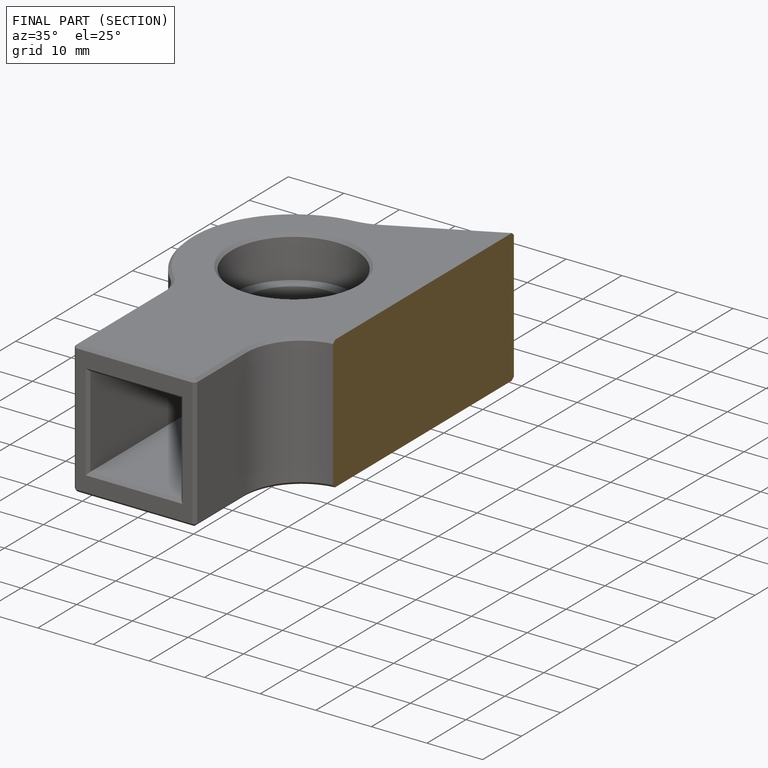
[diagram: finished part — half-section view (interior)]
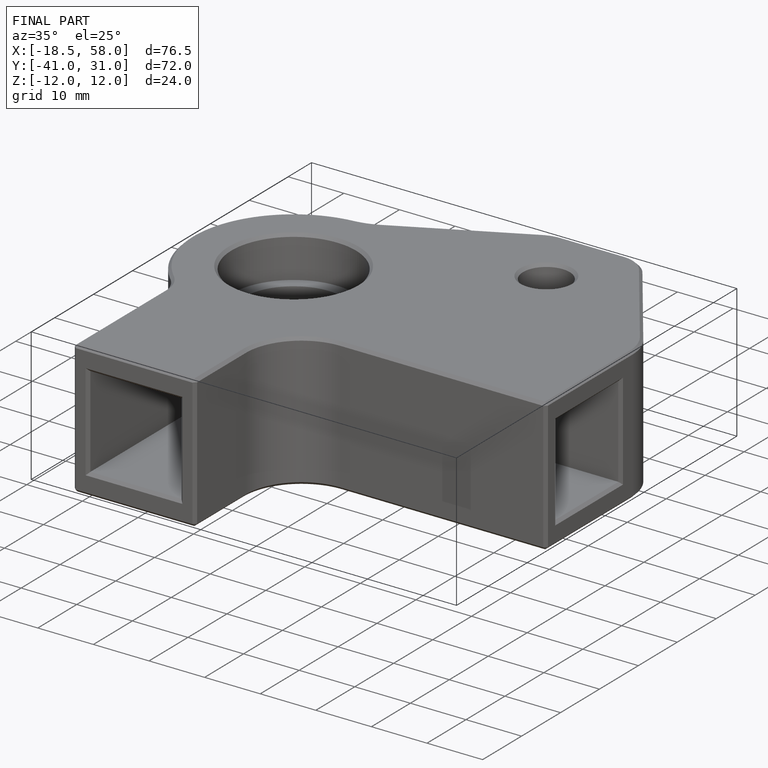
[diagram: finished part — iso view with bounding-box wireframe]
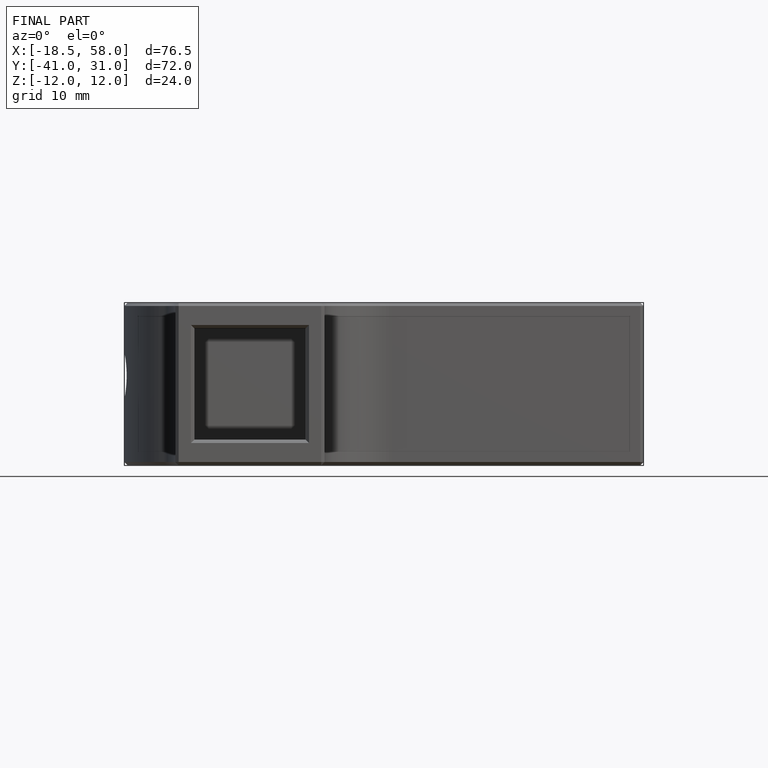
[diagram: finished part — front view with bounding-box wireframe]
